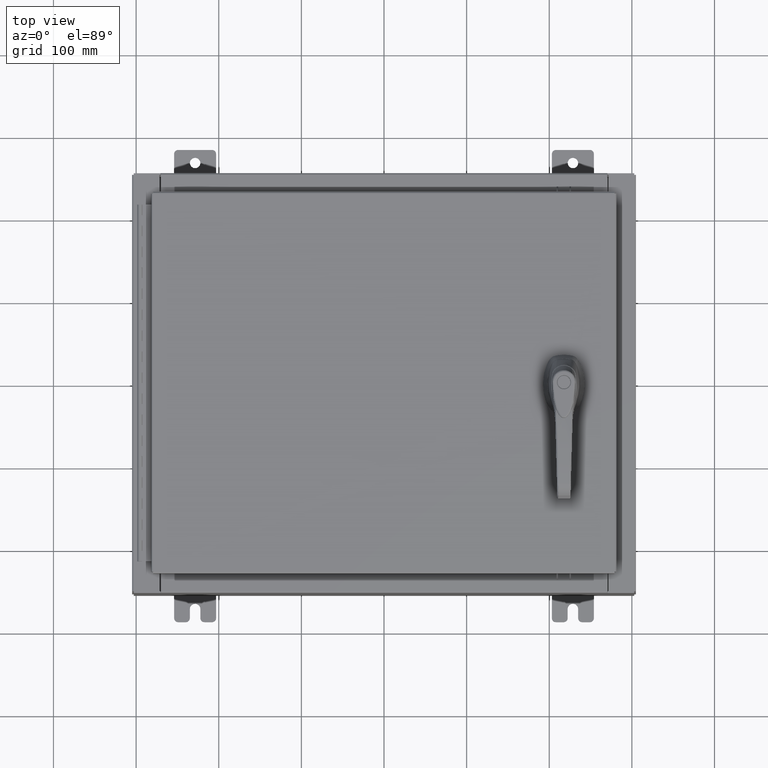
[diagram: clean part render]
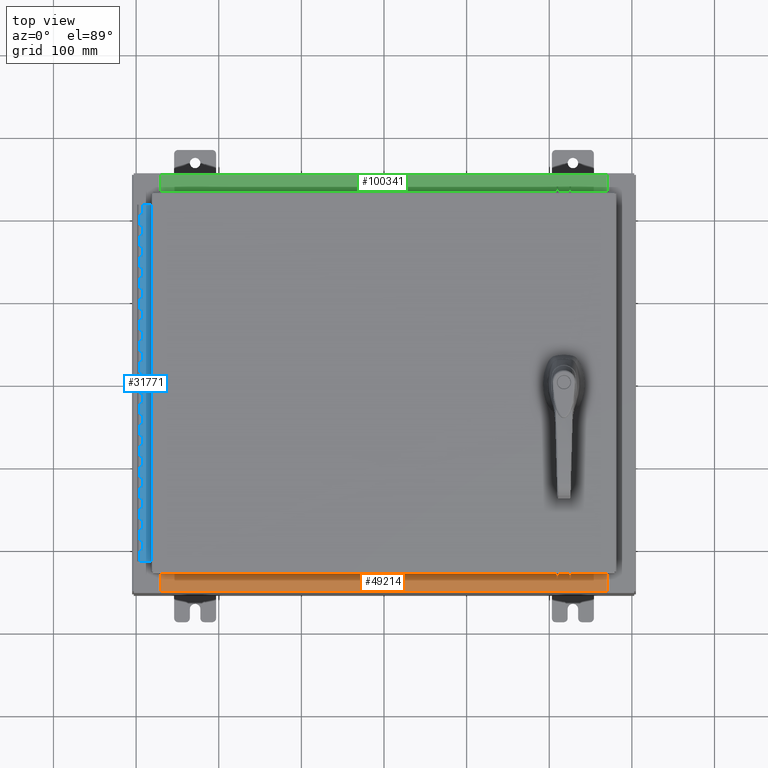
[diagram: same view with three faces highlighted in distinct colors, each labeled with its STEP entity id]
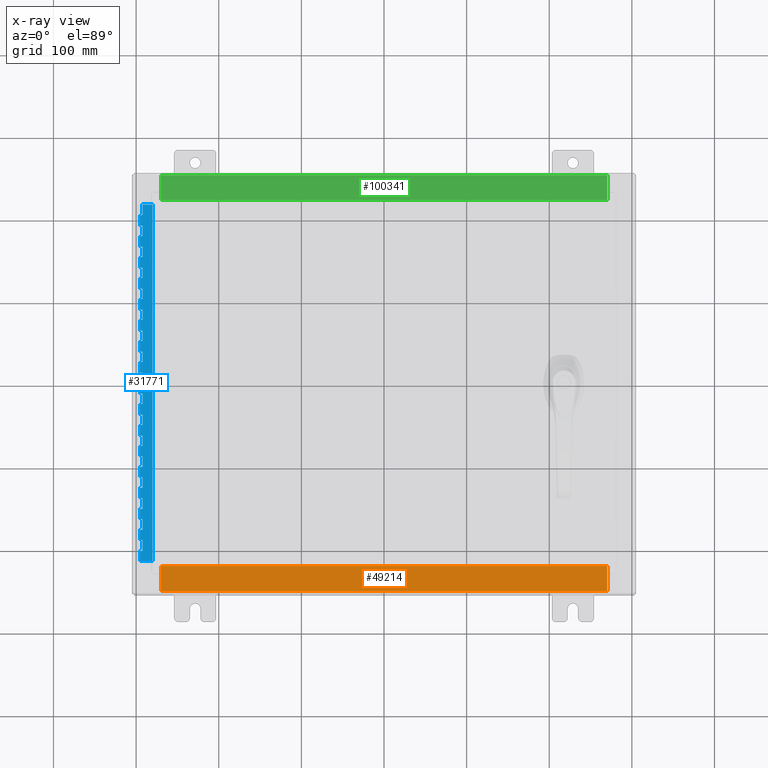
[diagram: x-ray of the same camera — body ghosted, the three highlighted faces saturated]
A machine part, top view with three faces highlighted in distinct colors.
The next image is the same camera in x-ray (body ghosted, the three faces saturated) — at least one of them is partly hidden behind the body in this view.
Their STEP definitions:

[orange] entity #49214 — the highlighted planar face has unit normal (-0, -0, 1).
#2926 = CARTESIAN_POINT ( 'NONE',  ( 10.63720000000000400, -0.08769999999999965300, 4.000000000000000000 ) ) ;
#3678 = CARTESIAN_POINT ( 'NONE',  ( -10.63720000000000200, -0.08770000000000000000, 4.000000000000000000 ) ) ;
#9365 = VERTEX_POINT ( 'NONE', #36536 ) ;
#10026 = EDGE_CURVE ( 'NONE', #102955, #9365, #25761, .T. ) ;
#11747 = VECTOR ( 'NONE', #107714, 39.37007874015748100 ) ;
#14982 = FACE_OUTER_BOUND ( 'NONE', #53616, .T. ) ;
#19145 = ORIENTED_EDGE ( 'NONE', *, *, #76750, .F. ) ;
#20736 = DIRECTION ( 'NONE',  ( -1.000000000000000000, 0.0000000000000000000, 0.0000000000000000000 ) ) ;
#25761 = LINE ( 'NONE', #80386, #48458 ) ;
#31931 = DIRECTION ( 'NONE',  ( -1.000000000000000000, 2.568202152506545800E-017, -9.159187855938968600E-032 ) ) ;
#32292 = VECTOR ( 'NONE', #31931, 39.37007874015748100 ) ;
#36536 = CARTESIAN_POINT ( 'NONE',  ( -10.63720000000000200, -1.287299999999999200, 4.000000000000004400 ) ) ;
#37056 = VECTOR ( 'NONE', #94693, 39.37007874015748100 ) ;
#38616 = DIRECTION ( 'NONE',  ( 0.0000000000000000000, 3.566381192773190000E-015, 1.000000000000000000 ) ) ;
#42518 = ORIENTED_EDGE ( 'NONE', *, *, #10026, .F. ) ;
#46809 = VERTEX_POINT ( 'NONE', #2926 ) ;
#48458 = VECTOR ( 'NONE', #20736, 39.37007874015748100 ) ;
#49214 = ADVANCED_FACE ( 'NONE', ( #14982 ), #81141, .T. ) ;
#49386 = EDGE_CURVE ( 'NONE', #46809, #68567, #97718, .T. ) ;
#53616 = EDGE_LOOP ( 'NONE', ( #87066, #42518, #19145, #109517 ) ) ;
#68567 = VERTEX_POINT ( 'NONE', #3678 ) ;
#72575 = CARTESIAN_POINT ( 'NONE',  ( 0.0000000000000000000, 1.425992975200418500E-014, 4.000000000000000000 ) ) ;
#76750 = EDGE_CURVE ( 'NONE', #46809, #102955, #105293, .T. ) ;
#80386 = CARTESIAN_POINT ( 'NONE',  ( 10.63720000000000400, -1.287299999999999900, 4.000000000000003600 ) ) ;
#81141 = PLANE ( 'NONE',  #92700 ) ;
#87066 = ORIENTED_EDGE ( 'NONE', *, *, #107253, .F. ) ;
#91617 = CARTESIAN_POINT ( 'NONE',  ( -2.252313287748606700E-018, -0.08770000000000000000, 4.000000000000000900 ) ) ;
#92700 = AXIS2_PLACEMENT_3D ( 'NONE', #72575, #38616, #98388 ) ;
#92769 = CARTESIAN_POINT ( 'NONE',  ( 10.63720000000000200, -1.287299999999999900, 4.000000000000004400 ) ) ;
#94324 = CARTESIAN_POINT ( 'NONE',  ( -10.63720000000000200, -0.07469999999999973900, 4.000000000000000000 ) ) ;
#94693 = DIRECTION ( 'NONE',  ( -0.0000000000000000000, 1.000000000000000000, -3.566381192773190000E-015 ) ) ;
#97718 = LINE ( 'NONE', #91617, #32292 ) ;
#98388 = DIRECTION ( 'NONE',  ( 0.0000000000000000000, -1.000000000000000000, 3.566381192773190000E-015 ) ) ;
#99047 = CARTESIAN_POINT ( 'NONE',  ( 10.63720000000000200, -1.300299999999999800, 4.000000000000004400 ) ) ;
#102955 = VERTEX_POINT ( 'NONE', #92769 ) ;
#105293 = LINE ( 'NONE', #99047, #11747 ) ;
#105297 = LINE ( 'NONE', #94324, #37056 ) ;
#107253 = EDGE_CURVE ( 'NONE', #9365, #68567, #105297, .T. ) ;
#107714 = DIRECTION ( 'NONE',  ( -0.0000000000000000000, -1.000000000000000000, 3.566381192773190000E-015 ) ) ;
#109517 = ORIENTED_EDGE ( 'NONE', *, *, #49386, .T. ) ;

[blue] entity #31771 — the highlighted planar face has unit normal (-0, -0, 1).
#47 = CARTESIAN_POINT ( 'NONE',  ( -0.6869999999999978300, 0.6754999999999996600, -4.500000000000000000 ) ) ;
#160 = CARTESIAN_POINT ( 'NONE',  ( -0.6869999999999973900, 0.8004999999999995500, -14.99999999999999800 ) ) ;
#166 = EDGE_CURVE ( 'NONE', #66786, #53249, #94823, .T. ) ;
#210 = EDGE_LOOP ( 'NONE', ( #28148, #21227, #45774, #89836, #55099, #100340, #6671, #25777, #104706, #49702, #51748, #77881, #69329, #95586, #48024, #107356, #3635, #78209, #102460, #104847, #3235, #86441, #109237, #80365, #55486, #34826, #59276, #17556, #63247, #79703, #69007, #70004, #37496, #805, #18520, #106635, #27858, #21245, #52656, #611, #77173, #21349, #98556, #86660, #47980, #106160, #30258, #24766, #56524, #71233, #87417, #68588, #11864, #36738, #79491, #19980, #49020, #80944, #15597, #80242, #26455, #42741, #3271, #69486, #12758, #40654, #24801, #6099, #38350, #12600 ) ) ;
#460 = DIRECTION ( 'NONE',  ( 0.0000000000000000000, 0.0000000000000000000, 1.000000000000000000 ) ) ;
#611 = ORIENTED_EDGE ( 'NONE', *, *, #92366, .F. ) ;
#805 = ORIENTED_EDGE ( 'NONE', *, *, #27399, .F. ) ;
#948 = VECTOR ( 'NONE', #106796, 39.37007874015748100 ) ;
#1266 = LINE ( 'NONE', #22145, #86622 ) ;
#1750 = VECTOR ( 'NONE', #14948, 39.37007874015748100 ) ;
#1844 = DIRECTION ( 'NONE',  ( 0.0000000000000000000, -0.0000000000000000000, -1.000000000000000000 ) ) ;
#1851 = VECTOR ( 'NONE', #51264, 39.37007874015748100 ) ;
#1892 = EDGE_CURVE ( 'NONE', #47592, #27334, #91960, .T. ) ;
#2068 = VECTOR ( 'NONE', #86081, 39.37007874015748100 ) ;
#2424 = VECTOR ( 'NONE', #9219, 39.37007874015748100 ) ;
#2437 = VERTEX_POINT ( 'NONE', #101552 ) ;
#2794 = EDGE_CURVE ( 'NONE', #108377, #70081, #94514, .T. ) ;
#2852 = CARTESIAN_POINT ( 'NONE',  ( -0.6869999999999978300, 0.6754999999999996600, -17.00000000000000000 ) ) ;
#3159 = VECTOR ( 'NONE', #67901, 39.37007874015748100 ) ;
#3235 = ORIENTED_EDGE ( 'NONE', *, *, #6371, .T. ) ;
#3271 = ORIENTED_EDGE ( 'NONE', *, *, #100487, .F. ) ;
#3494 = CARTESIAN_POINT ( 'NONE',  ( -0.6869999999999973900, 0.8004999999999995500, -12.99999999999999800 ) ) ;
#3635 = ORIENTED_EDGE ( 'NONE', *, *, #64058, .T. ) ;
#4064 = CARTESIAN_POINT ( 'NONE',  ( -0.6869999999999982800, 0.5504999999999997700, -3.500000000000000000 ) ) ;
#4186 = VERTEX_POINT ( 'NONE', #22409 ) ;
#4263 = VERTEX_POINT ( 'NONE', #99325 ) ;
#4587 = VECTOR ( 'NONE', #9686, 39.37007874015748100 ) ;
#4927 = DIRECTION ( 'NONE',  ( 3.369016658928398200E-015, 1.000000000000000000, 0.0000000000000000000 ) ) ;
#5301 = CARTESIAN_POINT ( 'NONE',  ( -0.6869999999999982800, 0.5504999999999997700, -14.49999999999999800 ) ) ;
#5536 = DIRECTION ( 'NONE',  ( -3.389037039080723100E-015, -1.000000000000000000, 0.0000000000000000000 ) ) ;
#5650 = CARTESIAN_POINT ( 'NONE',  ( -0.6869999999999973900, 0.8004999999999995500, -16.50000000000000000 ) ) ;
#5664 = VERTEX_POINT ( 'NONE', #98059 ) ;
#5669 = CARTESIAN_POINT ( 'NONE',  ( -0.6869999999999982800, 0.5504999999999997700, -6.499999999999999100 ) ) ;
#6099 = ORIENTED_EDGE ( 'NONE', *, *, #6832, .F. ) ;
#6231 = VERTEX_POINT ( 'NONE', #90782 ) ;
#6371 = EDGE_CURVE ( 'NONE', #9996, #27265, #22010, .T. ) ;
#6450 = VERTEX_POINT ( 'NONE', #49716 ) ;
#6508 = VECTOR ( 'NONE', #91940, 39.37007874015748100 ) ;
#6524 = DIRECTION ( 'NONE',  ( 3.389037039080723100E-015, 1.000000000000000000, -0.0000000000000000000 ) ) ;
#6545 = EDGE_CURVE ( 'NONE', #12798, #65476, #104913, .T. ) ;
#6671 = ORIENTED_EDGE ( 'NONE', *, *, #29966, .F. ) ;
#6832 = EDGE_CURVE ( 'NONE', #33840, #79031, #71380, .T. ) ;
#6902 = DIRECTION ( 'NONE',  ( 0.0000000000000000000, 0.0000000000000000000, 1.000000000000000000 ) ) ;
#6919 = FACE_OUTER_BOUND ( 'NONE', #210, .T. ) ;
#7591 = VERTEX_POINT ( 'NONE', #38199 ) ;
#8693 = VERTEX_POINT ( 'NONE', #56876 ) ;
#8892 = CARTESIAN_POINT ( 'NONE',  ( -0.6869999999999982800, 0.5504999999999997700, -1.499999999999999800 ) ) ;
#9219 = DIRECTION ( 'NONE',  ( -3.389037039080723100E-015, -1.000000000000000000, 0.0000000000000000000 ) ) ;
#9332 = CARTESIAN_POINT ( 'NONE',  ( -0.6869999999999998300, 0.07549999999999991400, -17.00000000000000000 ) ) ;
#9407 = CARTESIAN_POINT ( 'NONE',  ( -0.6869999999999978300, 0.6754999999999996600, -17.00000000000000000 ) ) ;
#9440 = CARTESIAN_POINT ( 'NONE',  ( -0.6869999999999973900, 0.8004999999999995500, -7.499999999999999100 ) ) ;
#9575 = DIRECTION ( 'NONE',  ( 0.0000000000000000000, 0.0000000000000000000, 1.000000000000000000 ) ) ;
#9686 = DIRECTION ( 'NONE',  ( 0.0000000000000000000, 0.0000000000000000000, 1.000000000000000000 ) ) ;
#9789 = CARTESIAN_POINT ( 'NONE',  ( -0.6869999999999973900, 0.8004999999999995500, -9.000000000000000000 ) ) ;
#9996 = VERTEX_POINT ( 'NONE', #28983 ) ;
#10642 = DIRECTION ( 'NONE',  ( 0.0000000000000000000, -0.0000000000000000000, -1.000000000000000000 ) ) ;
#10695 = CARTESIAN_POINT ( 'NONE',  ( -0.6869999999999978300, 0.6754999999999996600, -0.5000000000000000000 ) ) ;
#10941 = CARTESIAN_POINT ( 'NONE',  ( -0.6869999999999978300, 0.6754999999999996600, -17.00000000000000000 ) ) ;
#10952 = VECTOR ( 'NONE', #79586, 39.37007874015748100 ) ;
#11406 = VECTOR ( 'NONE', #23074, 39.37007874015748100 ) ;
#11598 = VECTOR ( 'NONE', #10642, 39.37007874015748100 ) ;
#11864 = ORIENTED_EDGE ( 'NONE', *, *, #69976, .T. ) ;
#12049 = DIRECTION ( 'NONE',  ( 3.389037039080723100E-015, 1.000000000000000000, -0.0000000000000000000 ) ) ;
#12271 = CARTESIAN_POINT ( 'NONE',  ( -0.6869999999999973900, 0.8004999999999995500, -12.49999999999999800 ) ) ;
#12285 = LINE ( 'NONE', #5669, #32270 ) ;
#12329 = LINE ( 'NONE', #96086, #105886 ) ;
#12508 = CARTESIAN_POINT ( 'NONE',  ( -0.6869999999999973900, 0.8004999999999995500, -10.00000000000000000 ) ) ;
#12600 = ORIENTED_EDGE ( 'NONE', *, *, #14618, .F. ) ;
#12735 = CARTESIAN_POINT ( 'NONE',  ( -0.6869999999999978300, 0.6754999999999996600, -2.000000000000000000 ) ) ;
#12758 = ORIENTED_EDGE ( 'NONE', *, *, #74078, .T. ) ;
#12798 = VERTEX_POINT ( 'NONE', #14641 ) ;
#13012 = VECTOR ( 'NONE', #106090, 39.37007874015748100 ) ;
#13204 = VERTEX_POINT ( 'NONE', #91060 ) ;
#13847 = LINE ( 'NONE', #30243, #76512 ) ;
#13936 = VECTOR ( 'NONE', #57755, 39.37007874015748100 ) ;
#14085 = VECTOR ( 'NONE', #23618, 39.37007874015748100 ) ;
#14203 = DIRECTION ( 'NONE',  ( -3.389037039080723100E-015, -1.000000000000000000, 0.0000000000000000000 ) ) ;
#14584 = CARTESIAN_POINT ( 'NONE',  ( -0.6869999999999978300, 0.6754999999999996600, -14.99999999999999800 ) ) ;
#14593 = CARTESIAN_POINT ( 'NONE',  ( -0.6869999999999982800, 0.5504999999999997700, -13.50000000000000000 ) ) ;
#14618 = EDGE_CURVE ( 'NONE', #23494, #25018, #13847, .T. ) ;
#14641 = CARTESIAN_POINT ( 'NONE',  ( -0.6869999999999978300, 0.6754999999999996600, -13.50000000000000000 ) ) ;
#14818 = CARTESIAN_POINT ( 'NONE',  ( -0.6869999999999978300, 0.6754999999999996600, -17.00000000000000000 ) ) ;
#14948 = DIRECTION ( 'NONE',  ( 0.0000000000000000000, -0.0000000000000000000, -1.000000000000000000 ) ) ;
#15169 = DIRECTION ( 'NONE',  ( 3.389037039080723100E-015, 1.000000000000000000, -0.0000000000000000000 ) ) ;
#15238 = EDGE_CURVE ( 'NONE', #47592, #66537, #67106, .T. ) ;
#15336 = VECTOR ( 'NONE', #94478, 39.37007874015748100 ) ;
#15484 = DIRECTION ( 'NONE',  ( 0.0000000000000000000, 0.0000000000000000000, 1.000000000000000000 ) ) ;
#15597 = ORIENTED_EDGE ( 'NONE', *, *, #24536, .F. ) ;
#15722 = VERTEX_POINT ( 'NONE', #57085 ) ;
#16150 = EDGE_CURVE ( 'NONE', #13204, #32594, #107193, .T. ) ;
#16256 = CARTESIAN_POINT ( 'NONE',  ( -0.6869999999999978300, 0.6754999999999996600, -7.499999999999999100 ) ) ;
#16966 = DIRECTION ( 'NONE',  ( 0.0000000000000000000, -0.0000000000000000000, -1.000000000000000000 ) ) ;
#17108 = LINE ( 'NONE', #12271, #62474 ) ;
#17121 = EDGE_CURVE ( 'NONE', #105178, #6231, #64196, .T. ) ;
#17377 = EDGE_CURVE ( 'NONE', #71331, #27682, #68175, .T. ) ;
#17556 = ORIENTED_EDGE ( 'NONE', *, *, #91099, .F. ) ;
#17654 = VECTOR ( 'NONE', #63993, 39.37007874015748100 ) ;
#18516 = LINE ( 'NONE', #51505, #86555 ) ;
#18520 = ORIENTED_EDGE ( 'NONE', *, *, #100731, .F. ) ;
#18750 = CARTESIAN_POINT ( 'NONE',  ( -0.6869999999999982800, 0.5504999999999997700, -3.500000000000000000 ) ) ;
#18813 = LINE ( 'NONE', #107136, #38776 ) ;
#19285 = VERTEX_POINT ( 'NONE', #63577 ) ;
#19440 = LINE ( 'NONE', #59318, #107644 ) ;
#19933 = CARTESIAN_POINT ( 'NONE',  ( -0.6869999999999973900, 0.8004999999999995500, -2.999999999999999600 ) ) ;
#19980 = ORIENTED_EDGE ( 'NONE', *, *, #58260, .F. ) ;
#20175 = VERTEX_POINT ( 'NONE', #47 ) ;
#20662 = CARTESIAN_POINT ( 'NONE',  ( -0.6869999999999982800, 0.5504999999999997700, -2.999999999999999600 ) ) ;
#20955 = CARTESIAN_POINT ( 'NONE',  ( -0.6869999999999978300, 0.6754999999999996600, -10.50000000000000000 ) ) ;
#21042 = VECTOR ( 'NONE', #73684, 39.37007874015748100 ) ;
#21172 = LINE ( 'NONE', #75096, #43876 ) ;
#21227 = ORIENTED_EDGE ( 'NONE', *, *, #98001, .T. ) ;
#21245 = ORIENTED_EDGE ( 'NONE', *, *, #84911, .F. ) ;
#21284 = CARTESIAN_POINT ( 'NONE',  ( -0.6869999999999978300, 0.6754999999999996600, -17.00000000000000000 ) ) ;
#21349 = ORIENTED_EDGE ( 'NONE', *, *, #77229, .F. ) ;
#21691 = VERTEX_POINT ( 'NONE', #61185 ) ;
#22010 = LINE ( 'NONE', #100548, #64683 ) ;
#22145 = CARTESIAN_POINT ( 'NONE',  ( -0.6869999999999973900, 0.8004999999999995500, -2.000000000000000000 ) ) ;
#22298 = CARTESIAN_POINT ( 'NONE',  ( -0.6869999999999978300, 0.6754999999999996600, -4.000000000000000000 ) ) ;
#22409 = CARTESIAN_POINT ( 'NONE',  ( -0.6869999999999982800, 0.5504999999999997700, -15.50000000000000000 ) ) ;
#22594 = CARTESIAN_POINT ( 'NONE',  ( -0.6869999999999973900, 0.8004999999999995500, -11.99999999999999800 ) ) ;
#22708 = CARTESIAN_POINT ( 'NONE',  ( -0.6869999999999973900, 0.8004999999999995500, -14.00000000000000000 ) ) ;
#22996 = DIRECTION ( 'NONE',  ( 0.0000000000000000000, 0.0000000000000000000, 1.000000000000000000 ) ) ;
#23074 = DIRECTION ( 'NONE',  ( 3.389037039080723100E-015, 1.000000000000000000, -0.0000000000000000000 ) ) ;
#23494 = VERTEX_POINT ( 'NONE', #58717 ) ;
#23512 = CARTESIAN_POINT ( 'NONE',  ( -0.6869999999999973900, 0.8004999999999995500, -6.000000000000000900 ) ) ;
#23618 = DIRECTION ( 'NONE',  ( -3.389037039080723100E-015, -1.000000000000000000, 0.0000000000000000000 ) ) ;
#24020 = DIRECTION ( 'NONE',  ( -3.389037039080723100E-015, -1.000000000000000000, 0.0000000000000000000 ) ) ;
#24089 = EDGE_CURVE ( 'NONE', #48915, #31179, #39412, .T. ) ;
#24398 = CARTESIAN_POINT ( 'NONE',  ( -0.6869999999999982800, 0.5504999999999997700, -7.499999999999999100 ) ) ;
#24536 = EDGE_CURVE ( 'NONE', #86071, #82583, #88780, .T. ) ;
#24736 = CARTESIAN_POINT ( 'NONE',  ( -0.6869999999999978300, 0.6754999999999996600, -17.00000000000000000 ) ) ;
#24766 = ORIENTED_EDGE ( 'NONE', *, *, #55823, .F. ) ;
#24801 = ORIENTED_EDGE ( 'NONE', *, *, #62375, .F. ) ;
#24824 = VECTOR ( 'NONE', #46777, 39.37007874015748100 ) ;
#24887 = LINE ( 'NONE', #85913, #90261 ) ;
#25018 = VERTEX_POINT ( 'NONE', #38219 ) ;
#25777 = ORIENTED_EDGE ( 'NONE', *, *, #50751, .F. ) ;
#25976 = VECTOR ( 'NONE', #56738, 39.37007874015748100 ) ;
#26104 = LINE ( 'NONE', #109003, #96920 ) ;
#26194 = DIRECTION ( 'NONE',  ( -3.389037039080723100E-015, -1.000000000000000000, 0.0000000000000000000 ) ) ;
#26420 = LINE ( 'NONE', #78688, #29125 ) ;
#26455 = ORIENTED_EDGE ( 'NONE', *, *, #94227, .T. ) ;
#26738 = VECTOR ( 'NONE', #37420, 39.37007874015748100 ) ;
#27265 = VERTEX_POINT ( 'NONE', #75655 ) ;
#27334 = VERTEX_POINT ( 'NONE', #110115 ) ;
#27399 = EDGE_CURVE ( 'NONE', #70955, #4263, #87436, .T. ) ;
#27442 = DIRECTION ( 'NONE',  ( 0.0000000000000000000, 0.0000000000000000000, 1.000000000000000000 ) ) ;
#27525 = LINE ( 'NONE', #12508, #24824 ) ;
#27682 = VERTEX_POINT ( 'NONE', #109640 ) ;
#27858 = ORIENTED_EDGE ( 'NONE', *, *, #89529, .T. ) ;
#27868 = LINE ( 'NONE', #2852, #50528 ) ;
#28148 = ORIENTED_EDGE ( 'NONE', *, *, #72154, .F. ) ;
#28944 = VERTEX_POINT ( 'NONE', #16256 ) ;
#28983 = CARTESIAN_POINT ( 'NONE',  ( -0.6869999999999978300, 0.6754999999999996600, -12.49999999999999800 ) ) ;
#29024 = VECTOR ( 'NONE', #12049, 39.37007874015748100 ) ;
#29027 = EDGE_CURVE ( 'NONE', #85376, #33328, #89872, .T. ) ;
#29125 = VECTOR ( 'NONE', #44767, 39.37007874015748100 ) ;
#29510 = EDGE_CURVE ( 'NONE', #57391, #95949, #96574, .T. ) ;
#29966 = EDGE_CURVE ( 'NONE', #4186, #55345, #67058, .T. ) ;
#29990 = EDGE_CURVE ( 'NONE', #54519, #61471, #49754, .T. ) ;
#30243 = CARTESIAN_POINT ( 'NONE',  ( -0.6870000000000022800, -0.6245000000000003900, 0.0000000000000000000 ) ) ;
#30258 = ORIENTED_EDGE ( 'NONE', *, *, #103661, .F. ) ;
#30401 = VECTOR ( 'NONE', #5536, 39.37007874015748100 ) ;
#30640 = EDGE_CURVE ( 'NONE', #102097, #15722, #40312, .T. ) ;
#31173 = EDGE_CURVE ( 'NONE', #82583, #31179, #53615, .T. ) ;
#31179 = VERTEX_POINT ( 'NONE', #71026 ) ;
#31253 = LINE ( 'NONE', #9407, #65884 ) ;
#31572 = VERTEX_POINT ( 'NONE', #67167 ) ;
#31665 = CARTESIAN_POINT ( 'NONE',  ( -0.6869999999999982800, 0.5504999999999997700, -11.50000000000000000 ) ) ;
#31771 = ADVANCED_FACE ( 'NONE', ( #6919 ), #79831, .T. ) ;
#32270 = VECTOR ( 'NONE', #39539, 39.37007874015748100 ) ;
#32583 = LINE ( 'NONE', #9332, #4587 ) ;
#32594 = VERTEX_POINT ( 'NONE', #81933 ) ;
#33101 = LINE ( 'NONE', #33750, #2424 ) ;
#33326 = DIRECTION ( 'NONE',  ( 0.0000000000000000000, 0.0000000000000000000, 1.000000000000000000 ) ) ;
#33328 = VERTEX_POINT ( 'NONE', #62728 ) ;
#33750 = CARTESIAN_POINT ( 'NONE',  ( -0.6869999999999973900, 0.8004999999999995500, -9.500000000000000000 ) ) ;
#33840 = VERTEX_POINT ( 'NONE', #10695 ) ;
#33947 = DIRECTION ( 'NONE',  ( 3.389037039080723100E-015, 1.000000000000000000, -0.0000000000000000000 ) ) ;
#34111 = EDGE_CURVE ( 'NONE', #37726, #101619, #1266, .T. ) ;
#34125 = VECTOR ( 'NONE', #41884, 39.37007874015748100 ) ;
#34709 = EDGE_CURVE ( 'NONE', #76290, #19285, #102688, .T. ) ;
#34768 = DIRECTION ( 'NONE',  ( -3.389037039080723100E-015, -1.000000000000000000, 0.0000000000000000000 ) ) ;
#34826 = ORIENTED_EDGE ( 'NONE', *, *, #38360, .F. ) ;
#35003 = VERTEX_POINT ( 'NONE', #73610 ) ;
#35443 = LINE ( 'NONE', #76578, #80820 ) ;
#36340 = DIRECTION ( 'NONE',  ( 0.0000000000000000000, -0.0000000000000000000, -1.000000000000000000 ) ) ;
#36608 = LINE ( 'NONE', #91736, #13936 ) ;
#36680 = VECTOR ( 'NONE', #34768, 39.37007874015748100 ) ;
#36738 = ORIENTED_EDGE ( 'NONE', *, *, #42419, .F. ) ;
#37220 = VECTOR ( 'NONE', #15169, 39.37007874015748100 ) ;
#37311 = DIRECTION ( 'NONE',  ( 1.000000000000000000, -3.369016658928398200E-015, 0.0000000000000000000 ) ) ;
#37344 = EDGE_CURVE ( 'NONE', #90210, #70644, #24887, .T. ) ;
#37420 = DIRECTION ( 'NONE',  ( -3.389037039080723100E-015, -1.000000000000000000, 0.0000000000000000000 ) ) ;
#37496 = ORIENTED_EDGE ( 'NONE', *, *, #80273, .T. ) ;
#37580 = DIRECTION ( 'NONE',  ( -3.389037039080723100E-015, -1.000000000000000000, 0.0000000000000000000 ) ) ;
#37726 = VERTEX_POINT ( 'NONE', #99100 ) ;
#37992 = EDGE_CURVE ( 'NONE', #65476, #75367, #35443, .T. ) ;
#38199 = CARTESIAN_POINT ( 'NONE',  ( -0.6869999999999982800, 0.5504999999999997700, -17.00000000000000000 ) ) ;
#38219 = CARTESIAN_POINT ( 'NONE',  ( -0.6869999999999978300, 0.6754999999999996600, 0.0000000000000000000 ) ) ;
#38350 = ORIENTED_EDGE ( 'NONE', *, *, #70391, .T. ) ;
#38360 = EDGE_CURVE ( 'NONE', #32594, #101152, #19440, .T. ) ;
#38776 = VECTOR ( 'NONE', #81589, 39.37007874015748100 ) ;
#39412 = LINE ( 'NONE', #102682, #104974 ) ;
#39457 = LINE ( 'NONE', #101680, #34125 ) ;
#39539 = DIRECTION ( 'NONE',  ( 0.0000000000000000000, -0.0000000000000000000, -1.000000000000000000 ) ) ;
#39563 = CARTESIAN_POINT ( 'NONE',  ( -0.6869999999999973900, 0.8004999999999995500, -0.5000000000000000000 ) ) ;
#39638 = CARTESIAN_POINT ( 'NONE',  ( -0.6869999999999982800, 0.5504999999999997700, -4.500000000000000000 ) ) ;
#40312 = LINE ( 'NONE', #4064, #17654 ) ;
#40654 = ORIENTED_EDGE ( 'NONE', *, *, #29027, .F. ) ;
#40704 = VECTOR ( 'NONE', #108132, 39.37007874015748100 ) ;
#40900 = CARTESIAN_POINT ( 'NONE',  ( -0.6869999999999982800, 0.5504999999999997700, -7.499999999999999100 ) ) ;
#40978 = VECTOR ( 'NONE', #64866, 39.37007874015748100 ) ;
#41212 = CARTESIAN_POINT ( 'NONE',  ( -0.6869999999999973900, 0.8004999999999995500, -16.00000000000000000 ) ) ;
#41757 = DIRECTION ( 'NONE',  ( 3.389037039080723100E-015, 1.000000000000000000, -0.0000000000000000000 ) ) ;
#41800 = EDGE_CURVE ( 'NONE', #9996, #71331, #17108, .T. ) ;
#41884 = DIRECTION ( 'NONE',  ( -3.389037039080723100E-015, -1.000000000000000000, 0.0000000000000000000 ) ) ;
#41902 = EDGE_CURVE ( 'NONE', #48270, #35003, #87851, .T. ) ;
#42150 = CARTESIAN_POINT ( 'NONE',  ( -0.6869999999999982800, 0.5504999999999997700, -14.49999999999999800 ) ) ;
#42300 = EDGE_CURVE ( 'NONE', #103213, #27265, #86437, .T. ) ;
#42327 = CARTESIAN_POINT ( 'NONE',  ( -0.6869999999999978300, 0.6754999999999996600, -6.000000000000000900 ) ) ;
#42419 = EDGE_CURVE ( 'NONE', #15722, #65253, #66410, .T. ) ;
#42599 = VECTOR ( 'NONE', #9575, 39.37007874015748100 ) ;
#42741 = ORIENTED_EDGE ( 'NONE', *, *, #34111, .F. ) ;
#42811 = VECTOR ( 'NONE', #56146, 39.37007874015748100 ) ;
#42842 = VECTOR ( 'NONE', #94877, 39.37007874015748100 ) ;
#42897 = EDGE_CURVE ( 'NONE', #66786, #101152, #18516, .T. ) ;
#42929 = CARTESIAN_POINT ( 'NONE',  ( -0.6869999999999982800, 0.5504999999999997700, -5.500000000000000000 ) ) ;
#43876 = VECTOR ( 'NONE', #15484, 39.37007874015748100 ) ;
#44393 = VECTOR ( 'NONE', #83133, 39.37007874015748100 ) ;
#44659 = DIRECTION ( 'NONE',  ( -3.389037039080723100E-015, -1.000000000000000000, 0.0000000000000000000 ) ) ;
#44767 = DIRECTION ( 'NONE',  ( 0.0000000000000000000, -0.0000000000000000000, -1.000000000000000000 ) ) ;
#45389 = EDGE_CURVE ( 'NONE', #53249, #103213, #99720, .T. ) ;
#45774 = ORIENTED_EDGE ( 'NONE', *, *, #88480, .F. ) ;
#46285 = CARTESIAN_POINT ( 'NONE',  ( -0.6869999999999973900, 0.8004999999999995500, -7.000000000000000000 ) ) ;
#46777 = DIRECTION ( 'NONE',  ( 3.389037039080723100E-015, 1.000000000000000000, -0.0000000000000000000 ) ) ;
#46956 = CARTESIAN_POINT ( 'NONE',  ( -0.6869999999999978300, 0.6754999999999996600, -17.00000000000000000 ) ) ;
#47216 = CARTESIAN_POINT ( 'NONE',  ( -0.6869999999999982800, 0.5504999999999997700, -9.000000000000000000 ) ) ;
#47592 = VERTEX_POINT ( 'NONE', #82469 ) ;
#47622 = CARTESIAN_POINT ( 'NONE',  ( -0.6869999999999973900, 0.8004999999999995500, -5.500000000000000000 ) ) ;
#47980 = ORIENTED_EDGE ( 'NONE', *, *, #108548, .T. ) ;
#48024 = ORIENTED_EDGE ( 'NONE', *, *, #37992, .F. ) ;
#48168 = VECTOR ( 'NONE', #106336, 39.37007874015748100 ) ;
#48224 = CARTESIAN_POINT ( 'NONE',  ( -0.6869999999999978300, 0.6754999999999996600, -17.00000000000000000 ) ) ;
#48270 = VERTEX_POINT ( 'NONE', #24398 ) ;
#48292 = CARTESIAN_POINT ( 'NONE',  ( -0.6869999999999982800, 0.5504999999999997700, -2.500000000000000000 ) ) ;
#48579 = VERTEX_POINT ( 'NONE', #67035 ) ;
#48915 = VERTEX_POINT ( 'NONE', #53238 ) ;
#48967 = CARTESIAN_POINT ( 'NONE',  ( -0.6869999999999982800, 0.5504999999999997700, -9.500000000000000000 ) ) ;
#49020 = ORIENTED_EDGE ( 'NONE', *, *, #24089, .T. ) ;
#49702 = ORIENTED_EDGE ( 'NONE', *, *, #76044, .F. ) ;
#49716 = CARTESIAN_POINT ( 'NONE',  ( -0.6869999999999978300, 0.6754999999999996600, -5.000000000000000000 ) ) ;
#49754 = LINE ( 'NONE', #23512, #44393 ) ;
#50344 = DIRECTION ( 'NONE',  ( 0.0000000000000000000, -0.0000000000000000000, -1.000000000000000000 ) ) ;
#50528 = VECTOR ( 'NONE', #27442, 39.37007874015748100 ) ;
#50751 = EDGE_CURVE ( 'NONE', #90210, #4186, #18813, .T. ) ;
#50864 = LINE ( 'NONE', #105957, #48168 ) ;
#51041 = VECTOR ( 'NONE', #73958, 39.37007874015748100 ) ;
#51264 = DIRECTION ( 'NONE',  ( 3.389037039080723100E-015, 1.000000000000000000, -0.0000000000000000000 ) ) ;
#51492 = VERTEX_POINT ( 'NONE', #8892 ) ;
#51505 = CARTESIAN_POINT ( 'NONE',  ( -0.6869999999999978300, 0.6754999999999996600, -17.00000000000000000 ) ) ;
#51543 = CARTESIAN_POINT ( 'NONE',  ( -0.6869999999999973900, 0.8004999999999995500, -13.50000000000000000 ) ) ;
#51706 = CARTESIAN_POINT ( 'NONE',  ( -0.6869999999999982800, 0.5504999999999997700, -14.00000000000000000 ) ) ;
#51748 = ORIENTED_EDGE ( 'NONE', *, *, #89478, .F. ) ;
#52164 = CARTESIAN_POINT ( 'NONE',  ( -0.6869999999999982800, 0.5504999999999997700, -9.500000000000000000 ) ) ;
#52656 = ORIENTED_EDGE ( 'NONE', *, *, #41902, .F. ) ;
#52713 = VERTEX_POINT ( 'NONE', #42929 ) ;
#53032 = VERTEX_POINT ( 'NONE', #54100 ) ;
#53127 = AXIS2_PLACEMENT_3D ( 'NONE', #88423, #37311, #97051 ) ;
#53237 = CARTESIAN_POINT ( 'NONE',  ( -0.6869999999999973900, 0.8004999999999995500, -2.500000000000000000 ) ) ;
#53238 = CARTESIAN_POINT ( 'NONE',  ( -0.6869999999999978300, 0.6754999999999996600, -3.500000000000000000 ) ) ;
#53249 = VERTEX_POINT ( 'NONE', #31665 ) ;
#53615 = LINE ( 'NONE', #19933, #10952 ) ;
#53670 = VECTOR ( 'NONE', #95979, 39.37007874015748100 ) ;
#53745 = VECTOR ( 'NONE', #44659, 39.37007874015748100 ) ;
#54076 = LINE ( 'NONE', #22708, #11406 ) ;
#54100 = CARTESIAN_POINT ( 'NONE',  ( -0.6869999999999978300, 0.6754999999999996600, -10.00000000000000000 ) ) ;
#54519 = VERTEX_POINT ( 'NONE', #85500 ) ;
#54567 = VECTOR ( 'NONE', #22996, 39.37007874015748100 ) ;
#55099 = ORIENTED_EDGE ( 'NONE', *, *, #83427, .T. ) ;
#55345 = VERTEX_POINT ( 'NONE', #60364 ) ;
#55416 = EDGE_CURVE ( 'NONE', #20175, #5664, #74479, .T. ) ;
#55486 = ORIENTED_EDGE ( 'NONE', *, *, #42897, .T. ) ;
#55823 = EDGE_CURVE ( 'NONE', #31572, #52713, #75746, .T. ) ;
#56146 = DIRECTION ( 'NONE',  ( 0.0000000000000000000, -0.0000000000000000000, -1.000000000000000000 ) ) ;
#56524 = ORIENTED_EDGE ( 'NONE', *, *, #87596, .T. ) ;
#56707 = DIRECTION ( 'NONE',  ( 0.0000000000000000000, 0.0000000000000000000, 1.000000000000000000 ) ) ;
#56738 = DIRECTION ( 'NONE',  ( -3.389037039080723100E-015, -1.000000000000000000, 0.0000000000000000000 ) ) ;
#56876 = CARTESIAN_POINT ( 'NONE',  ( -0.6869999999999998300, 0.07549999999999991400, -17.00000000000000000 ) ) ;
#57085 = CARTESIAN_POINT ( 'NONE',  ( -0.6869999999999982800, 0.5504999999999997700, -4.000000000000000000 ) ) ;
#57391 = VERTEX_POINT ( 'NONE', #91299 ) ;
#57752 = DIRECTION ( 'NONE',  ( -3.389037039080723100E-015, -1.000000000000000000, 0.0000000000000000000 ) ) ;
#57755 = DIRECTION ( 'NONE',  ( 0.0000000000000000000, 0.0000000000000000000, 1.000000000000000000 ) ) ;
#58260 = EDGE_CURVE ( 'NONE', #48915, #102097, #26104, .T. ) ;
#58339 = VECTOR ( 'NONE', #56707, 39.37007874015748100 ) ;
#58370 = LINE ( 'NONE', #46285, #13012 ) ;
#58717 = CARTESIAN_POINT ( 'NONE',  ( -0.6869999999999998300, 0.07549999999999991400, 0.0000000000000000000 ) ) ;
#58895 = VECTOR ( 'NONE', #24020, 39.37007874015748100 ) ;
#59074 = LINE ( 'NONE', #39638, #51041 ) ;
#59276 = ORIENTED_EDGE ( 'NONE', *, *, #16150, .F. ) ;
#59318 = CARTESIAN_POINT ( 'NONE',  ( -0.6869999999999973900, 0.8004999999999995500, -11.00000000000000000 ) ) ;
#59445 = LINE ( 'NONE', #83249, #14085 ) ;
#59958 = CARTESIAN_POINT ( 'NONE',  ( -0.6869999999999982800, 0.5504999999999997700, -0.5000000000000000000 ) ) ;
#60071 = VECTOR ( 'NONE', #105390, 39.37007874015748100 ) ;
#60270 = CARTESIAN_POINT ( 'NONE',  ( -0.6869999999999982800, 0.5504999999999997700, -5.000000000000000000 ) ) ;
#60278 = EDGE_CURVE ( 'NONE', #5664, #75373, #59074, .T. ) ;
#60364 = CARTESIAN_POINT ( 'NONE',  ( -0.6869999999999982800, 0.5504999999999997700, -16.00000000000000000 ) ) ;
#60795 = VERTEX_POINT ( 'NONE', #87190 ) ;
#61103 = CARTESIAN_POINT ( 'NONE',  ( -0.6869999999999973900, 0.8004999999999995500, -4.500000000000000000 ) ) ;
#61185 = CARTESIAN_POINT ( 'NONE',  ( -0.6869999999999982800, 0.5504999999999997700, -7.000000000000000000 ) ) ;
#61471 = VERTEX_POINT ( 'NONE', #42327 ) ;
#61682 = CARTESIAN_POINT ( 'NONE',  ( -0.6869999999999982800, 0.5504999999999997700, -11.50000000000000000 ) ) ;
#61971 = CARTESIAN_POINT ( 'NONE',  ( -0.6869999999999978300, 0.6754999999999996600, -16.50000000000000000 ) ) ;
#62106 = LINE ( 'NONE', #21284, #84784 ) ;
#62375 = EDGE_CURVE ( 'NONE', #79031, #85376, #90881, .T. ) ;
#62474 = VECTOR ( 'NONE', #37580, 39.37007874015748100 ) ;
#62728 = CARTESIAN_POINT ( 'NONE',  ( -0.6869999999999978300, 0.6754999999999996600, -1.000000000000000000 ) ) ;
#62907 = CARTESIAN_POINT ( 'NONE',  ( -0.6869999999999978300, 0.6754999999999996600, -7.000000000000000000 ) ) ;
#63048 = VERTEX_POINT ( 'NONE', #20955 ) ;
#63247 = ORIENTED_EDGE ( 'NONE', *, *, #93167, .T. ) ;
#63577 = CARTESIAN_POINT ( 'NONE',  ( -0.6869999999999982800, 0.5504999999999997700, -16.50000000000000000 ) ) ;
#63993 = DIRECTION ( 'NONE',  ( 0.0000000000000000000, -0.0000000000000000000, -1.000000000000000000 ) ) ;
#64058 = EDGE_CURVE ( 'NONE', #12798, #78639, #65242, .T. ) ;
#64196 = LINE ( 'NONE', #83670, #58895 ) ;
#64278 = VECTOR ( 'NONE', #72856, 39.37007874015748100 ) ;
#64683 = VECTOR ( 'NONE', #6902, 39.37007874015748100 ) ;
#64866 = DIRECTION ( 'NONE',  ( 0.0000000000000000000, -0.0000000000000000000, -1.000000000000000000 ) ) ;
#65242 = LINE ( 'NONE', #69202, #42599 ) ;
#65253 = VERTEX_POINT ( 'NONE', #22298 ) ;
#65476 = VERTEX_POINT ( 'NONE', #14593 ) ;
#65835 = DIRECTION ( 'NONE',  ( 0.0000000000000000000, 0.0000000000000000000, 1.000000000000000000 ) ) ;
#65884 = VECTOR ( 'NONE', #69018, 39.37007874015748100 ) ;
#65974 = CARTESIAN_POINT ( 'NONE',  ( -0.6869999999999982800, 0.5504999999999997700, -15.50000000000000000 ) ) ;
#66410 = LINE ( 'NONE', #91638, #37220 ) ;
#66517 = CARTESIAN_POINT ( 'NONE',  ( -0.6869999999999982800, 0.5504999999999997700, -12.49999999999999800 ) ) ;
#66537 = VERTEX_POINT ( 'NONE', #42150 ) ;
#66786 = VERTEX_POINT ( 'NONE', #109773 ) ;
#67035 = CARTESIAN_POINT ( 'NONE',  ( -0.6869999999999978300, 0.6754999999999996600, -9.500000000000000000 ) ) ;
#67058 = LINE ( 'NONE', #65974, #1750 ) ;
#67106 = LINE ( 'NONE', #85853, #69774 ) ;
#67167 = CARTESIAN_POINT ( 'NONE',  ( -0.6869999999999978300, 0.6754999999999996600, -5.500000000000000000 ) ) ;
#67901 = DIRECTION ( 'NONE',  ( -3.389037039080723100E-015, -1.000000000000000000, 0.0000000000000000000 ) ) ;
#68175 = LINE ( 'NONE', #94507, #42842 ) ;
#68588 = ORIENTED_EDGE ( 'NONE', *, *, #55416, .F. ) ;
#68754 = DIRECTION ( 'NONE',  ( 0.0000000000000000000, 0.0000000000000000000, 1.000000000000000000 ) ) ;
#69007 = ORIENTED_EDGE ( 'NONE', *, *, #2794, .F. ) ;
#69018 = DIRECTION ( 'NONE',  ( 0.0000000000000000000, 0.0000000000000000000, 1.000000000000000000 ) ) ;
#69053 = CARTESIAN_POINT ( 'NONE',  ( -0.6869999999999982800, 0.5504999999999997700, -10.00000000000000000 ) ) ;
#69202 = CARTESIAN_POINT ( 'NONE',  ( -0.6869999999999978300, 0.6754999999999996600, -17.00000000000000000 ) ) ;
#69329 = ORIENTED_EDGE ( 'NONE', *, *, #1892, .T. ) ;
#69478 = VECTOR ( 'NONE', #6524, 39.37007874015748100 ) ;
#69486 = ORIENTED_EDGE ( 'NONE', *, *, #110007, .F. ) ;
#69676 = DIRECTION ( 'NONE',  ( -3.389037039080723100E-015, -1.000000000000000000, 0.0000000000000000000 ) ) ;
#69774 = VECTOR ( 'NONE', #26194, 39.37007874015748100 ) ;
#69976 = EDGE_CURVE ( 'NONE', #20175, #65253, #103662, .T. ) ;
#70004 = ORIENTED_EDGE ( 'NONE', *, *, #75120, .F. ) ;
#70046 = CARTESIAN_POINT ( 'NONE',  ( -0.6869999999999982800, 0.5504999999999997700, -10.50000000000000000 ) ) ;
#70081 = VERTEX_POINT ( 'NONE', #69053 ) ;
#70391 = EDGE_CURVE ( 'NONE', #33840, #25018, #62106, .T. ) ;
#70644 = VERTEX_POINT ( 'NONE', #14584 ) ;
#70955 = VERTEX_POINT ( 'NONE', #47216 ) ;
#71011 = LINE ( 'NONE', #10941, #53670 ) ;
#71026 = CARTESIAN_POINT ( 'NONE',  ( -0.6869999999999978300, 0.6754999999999996600, -2.999999999999999600 ) ) ;
#71233 = ORIENTED_EDGE ( 'NONE', *, *, #89714, .F. ) ;
#71331 = VERTEX_POINT ( 'NONE', #66517 ) ;
#71380 = LINE ( 'NONE', #39563, #25976 ) ;
#71806 = VECTOR ( 'NONE', #50344, 39.37007874015748100 ) ;
#71824 = VECTOR ( 'NONE', #69676, 39.37007874015748100 ) ;
#72154 = EDGE_CURVE ( 'NONE', #8693, #23494, #32583, .T. ) ;
#72187 = LINE ( 'NONE', #83258, #69478 ) ;
#72856 = DIRECTION ( 'NONE',  ( 0.0000000000000000000, -0.0000000000000000000, -1.000000000000000000 ) ) ;
#72964 = VECTOR ( 'NONE', #41757, 39.37007874015748100 ) ;
#73610 = CARTESIAN_POINT ( 'NONE',  ( -0.6869999999999982800, 0.5504999999999997700, -8.000000000000000000 ) ) ;
#73684 = DIRECTION ( 'NONE',  ( 3.389037039080723100E-015, 1.000000000000000000, -0.0000000000000000000 ) ) ;
#73958 = DIRECTION ( 'NONE',  ( 0.0000000000000000000, -0.0000000000000000000, -1.000000000000000000 ) ) ;
#74078 = EDGE_CURVE ( 'NONE', #102295, #33328, #27868, .T. ) ;
#74479 = LINE ( 'NONE', #61103, #71824 ) ;
#75049 = CARTESIAN_POINT ( 'NONE',  ( -0.6869999999999978300, 0.6754999999999996600, -15.50000000000000000 ) ) ;
#75096 = CARTESIAN_POINT ( 'NONE',  ( -0.6869999999999978300, 0.6754999999999996600, -17.00000000000000000 ) ) ;
#75120 = EDGE_CURVE ( 'NONE', #48579, #108377, #33101, .T. ) ;
#75239 = VERTEX_POINT ( 'NONE', #96094 ) ;
#75367 = VERTEX_POINT ( 'NONE', #51706 ) ;
#75373 = VERTEX_POINT ( 'NONE', #60270 ) ;
#75655 = CARTESIAN_POINT ( 'NONE',  ( -0.6869999999999978300, 0.6754999999999996600, -11.99999999999999800 ) ) ;
#75695 = CARTESIAN_POINT ( 'NONE',  ( -0.6869999999999973900, 0.8004999999999995500, -5.000000000000000000 ) ) ;
#75746 = LINE ( 'NONE', #47622, #30401 ) ;
#76044 = EDGE_CURVE ( 'NONE', #60795, #70644, #91898, .T. ) ;
#76290 = VERTEX_POINT ( 'NONE', #61971 ) ;
#76512 = VECTOR ( 'NONE', #4927, 39.37007874015748100 ) ;
#76578 = CARTESIAN_POINT ( 'NONE',  ( -0.6869999999999982800, 0.5504999999999997700, -13.50000000000000000 ) ) ;
#77173 = ORIENTED_EDGE ( 'NONE', *, *, #85683, .T. ) ;
#77229 = EDGE_CURVE ( 'NONE', #21691, #79305, #58370, .T. ) ;
#77297 = LINE ( 'NONE', #41212, #100097 ) ;
#77881 = ORIENTED_EDGE ( 'NONE', *, *, #15238, .F. ) ;
#78209 = ORIENTED_EDGE ( 'NONE', *, *, #89307, .F. ) ;
#78639 = VERTEX_POINT ( 'NONE', #81980 ) ;
#78688 = CARTESIAN_POINT ( 'NONE',  ( -0.6869999999999982800, 0.5504999999999997700, -16.50000000000000000 ) ) ;
#79031 = VERTEX_POINT ( 'NONE', #59958 ) ;
#79145 = CARTESIAN_POINT ( 'NONE',  ( -0.6869999999999982800, 0.5504999999999997700, -5.500000000000000000 ) ) ;
#79305 = VERTEX_POINT ( 'NONE', #62907 ) ;
#79491 = ORIENTED_EDGE ( 'NONE', *, *, #30640, .F. ) ;
#79586 = DIRECTION ( 'NONE',  ( 3.389037039080723100E-015, 1.000000000000000000, -0.0000000000000000000 ) ) ;
#79703 = ORIENTED_EDGE ( 'NONE', *, *, #90849, .F. ) ;
#79831 = PLANE ( 'NONE',  #53127 ) ;
#79870 = VECTOR ( 'NONE', #14203, 39.37007874015748100 ) ;
#80086 = LINE ( 'NONE', #105751, #60071 ) ;
#80242 = ORIENTED_EDGE ( 'NONE', *, *, #96163, .F. ) ;
#80273 = EDGE_CURVE ( 'NONE', #48579, #4263, #84669, .T. ) ;
#80365 = ORIENTED_EDGE ( 'NONE', *, *, #166, .F. ) ;
#80820 = VECTOR ( 'NONE', #16966, 39.37007874015748100 ) ;
#80932 = DIRECTION ( 'NONE',  ( 0.0000000000000000000, 0.0000000000000000000, 1.000000000000000000 ) ) ;
#80944 = ORIENTED_EDGE ( 'NONE', *, *, #31173, .F. ) ;
#80977 = LINE ( 'NONE', #82036, #58339 ) ;
#81035 = CARTESIAN_POINT ( 'NONE',  ( -0.6869999999999982800, 0.5504999999999997700, -11.99999999999999800 ) ) ;
#81474 = CARTESIAN_POINT ( 'NONE',  ( -0.6869999999999982800, 0.5504999999999997700, -0.5000000000000000000 ) ) ;
#81589 = DIRECTION ( 'NONE',  ( -3.389037039080723100E-015, -1.000000000000000000, 0.0000000000000000000 ) ) ;
#81780 = DIRECTION ( 'NONE',  ( 3.389037039080723100E-015, 1.000000000000000000, -0.0000000000000000000 ) ) ;
#81933 = CARTESIAN_POINT ( 'NONE',  ( -0.6869999999999982800, 0.5504999999999997700, -11.00000000000000000 ) ) ;
#81980 = CARTESIAN_POINT ( 'NONE',  ( -0.6869999999999978300, 0.6754999999999996600, -12.99999999999999800 ) ) ;
#82036 = CARTESIAN_POINT ( 'NONE',  ( -0.6869999999999978300, 0.6754999999999996600, -17.00000000000000000 ) ) ;
#82469 = CARTESIAN_POINT ( 'NONE',  ( -0.6869999999999978300, 0.6754999999999996600, -14.49999999999999800 ) ) ;
#82583 = VERTEX_POINT ( 'NONE', #20662 ) ;
#83133 = DIRECTION ( 'NONE',  ( 3.389037039080723100E-015, 1.000000000000000000, -0.0000000000000000000 ) ) ;
#83249 = CARTESIAN_POINT ( 'NONE',  ( -0.6869999999999973900, 0.8004999999999995500, -1.499999999999999800 ) ) ;
#83258 = CARTESIAN_POINT ( 'NONE',  ( -0.6869999999999973900, 0.8004999999999995500, -8.000000000000000000 ) ) ;
#83342 = LINE ( 'NONE', #9440, #15336 ) ;
#83427 = EDGE_CURVE ( 'NONE', #76290, #2437, #71011, .T. ) ;
#83670 = CARTESIAN_POINT ( 'NONE',  ( -0.6869999999999973900, 0.8004999999999995500, -8.500000000000000000 ) ) ;
#83737 = EDGE_CURVE ( 'NONE', #95949, #21691, #12285, .T. ) ;
#84335 = VECTOR ( 'NONE', #1844, 39.37007874015748100 ) ;
#84572 = CARTESIAN_POINT ( 'NONE',  ( -0.6869999999999982800, 0.5504999999999997700, -6.499999999999999100 ) ) ;
#84669 = LINE ( 'NONE', #14818, #107514 ) ;
#84784 = VECTOR ( 'NONE', #80932, 39.37007874015748100 ) ;
#84911 = EDGE_CURVE ( 'NONE', #35003, #98154, #72187, .T. ) ;
#85097 = CARTESIAN_POINT ( 'NONE',  ( -0.6869999999999978300, 0.6754999999999996600, -11.00000000000000000 ) ) ;
#85376 = VERTEX_POINT ( 'NONE', #85487 ) ;
#85487 = CARTESIAN_POINT ( 'NONE',  ( -0.6869999999999982800, 0.5504999999999997700, -1.000000000000000000 ) ) ;
#85500 = CARTESIAN_POINT ( 'NONE',  ( -0.6869999999999982800, 0.5504999999999997700, -6.000000000000000900 ) ) ;
#85683 = EDGE_CURVE ( 'NONE', #28944, #79305, #80086, .T. ) ;
#85853 = CARTESIAN_POINT ( 'NONE',  ( -0.6869999999999973900, 0.8004999999999995500, -14.49999999999999800 ) ) ;
#85913 = CARTESIAN_POINT ( 'NONE',  ( -0.6869999999999978300, 0.6754999999999996600, -17.00000000000000000 ) ) ;
#86071 = VERTEX_POINT ( 'NONE', #87601 ) ;
#86081 = DIRECTION ( 'NONE',  ( 3.389037039080723100E-015, 1.000000000000000000, -0.0000000000000000000 ) ) ;
#86180 = VECTOR ( 'NONE', #33326, 39.37007874015748100 ) ;
#86359 = LINE ( 'NONE', #5301, #40978 ) ;
#86437 = LINE ( 'NONE', #22594, #21042 ) ;
#86441 = ORIENTED_EDGE ( 'NONE', *, *, #42300, .F. ) ;
#86555 = VECTOR ( 'NONE', #460, 39.37007874015748100 ) ;
#86622 = VECTOR ( 'NONE', #81780, 39.37007874015748100 ) ;
#86660 = ORIENTED_EDGE ( 'NONE', *, *, #29510, .F. ) ;
#87019 = LINE ( 'NONE', #106953, #64278 ) ;
#87190 = CARTESIAN_POINT ( 'NONE',  ( -0.6869999999999982800, 0.5504999999999997700, -14.99999999999999800 ) ) ;
#87417 = ORIENTED_EDGE ( 'NONE', *, *, #60278, .F. ) ;
#87436 = LINE ( 'NONE', #9789, #2068 ) ;
#87596 = EDGE_CURVE ( 'NONE', #31572, #6450, #21172, .T. ) ;
#87601 = CARTESIAN_POINT ( 'NONE',  ( -0.6869999999999982800, 0.5504999999999997700, -2.500000000000000000 ) ) ;
#87851 = LINE ( 'NONE', #40900, #107994 ) ;
#88423 = CARTESIAN_POINT ( 'NONE',  ( -0.6870000000000022800, -0.6245000000000003900, -17.00000000000000000 ) ) ;
#88464 = CARTESIAN_POINT ( 'NONE',  ( -0.6869999999999978300, 0.6754999999999996600, -1.499999999999999800 ) ) ;
#88480 = EDGE_CURVE ( 'NONE', #19285, #7591, #26420, .T. ) ;
#88780 = LINE ( 'NONE', #48292, #40704 ) ;
#88989 = LINE ( 'NONE', #46956, #948 ) ;
#89307 = EDGE_CURVE ( 'NONE', #27682, #78639, #97128, .T. ) ;
#89478 = EDGE_CURVE ( 'NONE', #66537, #60795, #86359, .T. ) ;
#89529 = EDGE_CURVE ( 'NONE', #105178, #98154, #80977, .T. ) ;
#89714 = EDGE_CURVE ( 'NONE', #75373, #6450, #95713, .T. ) ;
#89836 = ORIENTED_EDGE ( 'NONE', *, *, #34709, .F. ) ;
#89872 = LINE ( 'NONE', #93822, #1851 ) ;
#90210 = VERTEX_POINT ( 'NONE', #75049 ) ;
#90261 = VECTOR ( 'NONE', #68754, 39.37007874015748100 ) ;
#90782 = CARTESIAN_POINT ( 'NONE',  ( -0.6869999999999982800, 0.5504999999999997700, -8.500000000000000000 ) ) ;
#90849 = EDGE_CURVE ( 'NONE', #70081, #53032, #27525, .T. ) ;
#90881 = LINE ( 'NONE', #81474, #42811 ) ;
#91060 = CARTESIAN_POINT ( 'NONE',  ( -0.6869999999999982800, 0.5504999999999997700, -10.50000000000000000 ) ) ;
#91099 = EDGE_CURVE ( 'NONE', #63048, #13204, #39457, .T. ) ;
#91299 = CARTESIAN_POINT ( 'NONE',  ( -0.6869999999999978300, 0.6754999999999996600, -6.499999999999999100 ) ) ;
#91638 = CARTESIAN_POINT ( 'NONE',  ( -0.6869999999999973900, 0.8004999999999995500, -4.000000000000000000 ) ) ;
#91736 = CARTESIAN_POINT ( 'NONE',  ( -0.6869999999999978300, 0.6754999999999996600, -17.00000000000000000 ) ) ;
#91898 = LINE ( 'NONE', #160, #6508 ) ;
#91940 = DIRECTION ( 'NONE',  ( 3.389037039080723100E-015, 1.000000000000000000, -0.0000000000000000000 ) ) ;
#91960 = LINE ( 'NONE', #48224, #54567 ) ;
#92351 = DIRECTION ( 'NONE',  ( 3.389037039080723100E-015, 1.000000000000000000, -0.0000000000000000000 ) ) ;
#92366 = EDGE_CURVE ( 'NONE', #28944, #48270, #83342, .T. ) ;
#93167 = EDGE_CURVE ( 'NONE', #63048, #53032, #31253, .T. ) ;
#93468 = EDGE_CURVE ( 'NONE', #75367, #27334, #54076, .T. ) ;
#93822 = CARTESIAN_POINT ( 'NONE',  ( -0.6869999999999973900, 0.8004999999999995500, -1.000000000000000000 ) ) ;
#94008 = DIRECTION ( 'NONE',  ( 0.0000000000000000000, 0.0000000000000000000, 1.000000000000000000 ) ) ;
#94227 = EDGE_CURVE ( 'NONE', #75239, #101619, #36608, .T. ) ;
#94478 = DIRECTION ( 'NONE',  ( -3.389037039080723100E-015, -1.000000000000000000, 0.0000000000000000000 ) ) ;
#94507 = CARTESIAN_POINT ( 'NONE',  ( -0.6869999999999982800, 0.5504999999999997700, -12.49999999999999800 ) ) ;
#94514 = LINE ( 'NONE', #52164, #71806 ) ;
#94823 = LINE ( 'NONE', #109995, #26738 ) ;
#94877 = DIRECTION ( 'NONE',  ( 0.0000000000000000000, -0.0000000000000000000, -1.000000000000000000 ) ) ;
#95586 = ORIENTED_EDGE ( 'NONE', *, *, #93468, .F. ) ;
#95713 = LINE ( 'NONE', #75695, #72964 ) ;
#95949 = VERTEX_POINT ( 'NONE', #84572 ) ;
#95979 = DIRECTION ( 'NONE',  ( 0.0000000000000000000, 0.0000000000000000000, 1.000000000000000000 ) ) ;
#96086 = CARTESIAN_POINT ( 'NONE',  ( -0.6869999999999982800, 0.5504999999999997700, -1.499999999999999800 ) ) ;
#96094 = CARTESIAN_POINT ( 'NONE',  ( -0.6869999999999978300, 0.6754999999999996600, -2.500000000000000000 ) ) ;
#96163 = EDGE_CURVE ( 'NONE', #75239, #86071, #99197, .T. ) ;
#96356 = DIRECTION ( 'NONE',  ( 0.0000000000000000000, -0.0000000000000000000, -1.000000000000000000 ) ) ;
#96574 = LINE ( 'NONE', #110584, #3159 ) ;
#96920 = VECTOR ( 'NONE', #57752, 39.37007874015748100 ) ;
#97051 = DIRECTION ( 'NONE',  ( 3.369016658928398200E-015, 1.000000000000000000, 0.0000000000000000000 ) ) ;
#97128 = LINE ( 'NONE', #3494, #29024 ) ;
#97619 = CARTESIAN_POINT ( 'NONE',  ( -0.6869999999999978300, 0.6754999999999996600, -8.500000000000000000 ) ) ;
#98001 = EDGE_CURVE ( 'NONE', #8693, #7591, #50864, .T. ) ;
#98059 = CARTESIAN_POINT ( 'NONE',  ( -0.6869999999999982800, 0.5504999999999997700, -4.500000000000000000 ) ) ;
#98154 = VERTEX_POINT ( 'NONE', #108169 ) ;
#98556 = ORIENTED_EDGE ( 'NONE', *, *, #83737, .F. ) ;
#98750 = VECTOR ( 'NONE', #96356, 39.37007874015748100 ) ;
#99100 = CARTESIAN_POINT ( 'NONE',  ( -0.6869999999999982800, 0.5504999999999997700, -2.000000000000000000 ) ) ;
#99197 = LINE ( 'NONE', #53237, #53745 ) ;
#99325 = CARTESIAN_POINT ( 'NONE',  ( -0.6869999999999978300, 0.6754999999999996600, -9.000000000000000000 ) ) ;
#99720 = LINE ( 'NONE', #61682, #11598 ) ;
#100097 = VECTOR ( 'NONE', #92351, 39.37007874015748100 ) ;
#100340 = ORIENTED_EDGE ( 'NONE', *, *, #105424, .F. ) ;
#100487 = EDGE_CURVE ( 'NONE', #51492, #37726, #12329, .T. ) ;
#100548 = CARTESIAN_POINT ( 'NONE',  ( -0.6869999999999978300, 0.6754999999999996600, -17.00000000000000000 ) ) ;
#100682 = DIRECTION ( 'NONE',  ( 0.0000000000000000000, -0.0000000000000000000, -1.000000000000000000 ) ) ;
#100731 = EDGE_CURVE ( 'NONE', #6231, #70955, #87019, .T. ) ;
#101152 = VERTEX_POINT ( 'NONE', #85097 ) ;
#101552 = CARTESIAN_POINT ( 'NONE',  ( -0.6869999999999978300, 0.6754999999999996600, -16.00000000000000000 ) ) ;
#101619 = VERTEX_POINT ( 'NONE', #12735 ) ;
#101680 = CARTESIAN_POINT ( 'NONE',  ( -0.6869999999999973900, 0.8004999999999995500, -10.50000000000000000 ) ) ;
#102097 = VERTEX_POINT ( 'NONE', #18750 ) ;
#102295 = VERTEX_POINT ( 'NONE', #88464 ) ;
#102460 = ORIENTED_EDGE ( 'NONE', *, *, #17377, .F. ) ;
#102682 = CARTESIAN_POINT ( 'NONE',  ( -0.6869999999999978300, 0.6754999999999996600, -17.00000000000000000 ) ) ;
#102688 = LINE ( 'NONE', #5650, #79870 ) ;
#103213 = VERTEX_POINT ( 'NONE', #81035 ) ;
#103661 = EDGE_CURVE ( 'NONE', #52713, #54519, #109543, .T. ) ;
#103662 = LINE ( 'NONE', #24736, #86180 ) ;
#104706 = ORIENTED_EDGE ( 'NONE', *, *, #37344, .T. ) ;
#104847 = ORIENTED_EDGE ( 'NONE', *, *, #41800, .F. ) ;
#104913 = LINE ( 'NONE', #51543, #36680 ) ;
#104974 = VECTOR ( 'NONE', #94008, 39.37007874015748100 ) ;
#105178 = VERTEX_POINT ( 'NONE', #97619 ) ;
#105390 = DIRECTION ( 'NONE',  ( 0.0000000000000000000, 0.0000000000000000000, 1.000000000000000000 ) ) ;
#105424 = EDGE_CURVE ( 'NONE', #55345, #2437, #77297, .T. ) ;
#105751 = CARTESIAN_POINT ( 'NONE',  ( -0.6869999999999978300, 0.6754999999999996600, -17.00000000000000000 ) ) ;
#105886 = VECTOR ( 'NONE', #36340, 39.37007874015748100 ) ;
#105957 = CARTESIAN_POINT ( 'NONE',  ( -0.6870000000000022800, -0.6245000000000003900, -17.00000000000000000 ) ) ;
#106090 = DIRECTION ( 'NONE',  ( 3.389037039080723100E-015, 1.000000000000000000, -0.0000000000000000000 ) ) ;
#106160 = ORIENTED_EDGE ( 'NONE', *, *, #29990, .F. ) ;
#106336 = DIRECTION ( 'NONE',  ( 3.369016658928398200E-015, 1.000000000000000000, 0.0000000000000000000 ) ) ;
#106635 = ORIENTED_EDGE ( 'NONE', *, *, #17121, .F. ) ;
#106796 = DIRECTION ( 'NONE',  ( 0.0000000000000000000, 0.0000000000000000000, 1.000000000000000000 ) ) ;
#106953 = CARTESIAN_POINT ( 'NONE',  ( -0.6869999999999982800, 0.5504999999999997700, -8.500000000000000000 ) ) ;
#107136 = CARTESIAN_POINT ( 'NONE',  ( -0.6869999999999973900, 0.8004999999999995500, -15.50000000000000000 ) ) ;
#107193 = LINE ( 'NONE', #70046, #84335 ) ;
#107356 = ORIENTED_EDGE ( 'NONE', *, *, #6545, .F. ) ;
#107514 = VECTOR ( 'NONE', #65835, 39.37007874015748100 ) ;
#107644 = VECTOR ( 'NONE', #33947, 39.37007874015748100 ) ;
#107994 = VECTOR ( 'NONE', #100682, 39.37007874015748100 ) ;
#108132 = DIRECTION ( 'NONE',  ( 0.0000000000000000000, -0.0000000000000000000, -1.000000000000000000 ) ) ;
#108169 = CARTESIAN_POINT ( 'NONE',  ( -0.6869999999999978300, 0.6754999999999996600, -8.000000000000000000 ) ) ;
#108377 = VERTEX_POINT ( 'NONE', #48967 ) ;
#108548 = EDGE_CURVE ( 'NONE', #57391, #61471, #88989, .T. ) ;
#109003 = CARTESIAN_POINT ( 'NONE',  ( -0.6869999999999973900, 0.8004999999999995500, -3.500000000000000000 ) ) ;
#109237 = ORIENTED_EDGE ( 'NONE', *, *, #45389, .F. ) ;
#109543 = LINE ( 'NONE', #79145, #98750 ) ;
#109640 = CARTESIAN_POINT ( 'NONE',  ( -0.6869999999999982800, 0.5504999999999997700, -12.99999999999999800 ) ) ;
#109773 = CARTESIAN_POINT ( 'NONE',  ( -0.6869999999999978300, 0.6754999999999996600, -11.50000000000000000 ) ) ;
#109995 = CARTESIAN_POINT ( 'NONE',  ( -0.6869999999999973900, 0.8004999999999995500, -11.50000000000000000 ) ) ;
#110007 = EDGE_CURVE ( 'NONE', #102295, #51492, #59445, .T. ) ;
#110115 = CARTESIAN_POINT ( 'NONE',  ( -0.6869999999999978300, 0.6754999999999996600, -14.00000000000000000 ) ) ;
#110584 = CARTESIAN_POINT ( 'NONE',  ( -0.6869999999999973900, 0.8004999999999995500, -6.499999999999999100 ) ) ;

[green] entity #100341 — the highlighted planar face has unit normal (0, 0, 1).
#448 = EDGE_CURVE ( 'NONE', #72113, #104858, #33378, .T. ) ;
#3914 = EDGE_CURVE ( 'NONE', #98402, #88381, #43634, .T. ) ;
#11447 = ORIENTED_EDGE ( 'NONE', *, *, #3914, .T. ) ;
#12965 = LINE ( 'NONE', #40651, #101134 ) ;
#17747 = DIRECTION ( 'NONE',  ( 0.0000000000000000000, -1.000000000000000000, 3.566381192773190000E-015 ) ) ;
#22856 = CARTESIAN_POINT ( 'NONE',  ( -2.252313287748606700E-018, -0.08770000000000000000, 4.000000000000000900 ) ) ;
#23632 = AXIS2_PLACEMENT_3D ( 'NONE', #85606, #68813, #17747 ) ;
#33378 = LINE ( 'NONE', #100464, #98823 ) ;
#34218 = CARTESIAN_POINT ( 'NONE',  ( -10.63720000000000200, -1.287299999999999200, 4.000000000000004400 ) ) ;
#40651 = CARTESIAN_POINT ( 'NONE',  ( -10.63720000000000200, -0.07469999999999973900, 4.000000000000000000 ) ) ;
#43634 = LINE ( 'NONE', #22856, #46317 ) ;
#46317 = VECTOR ( 'NONE', #91152, 39.37007874015748100 ) ;
#60246 = PLANE ( 'NONE',  #23632 ) ;
#62799 = CARTESIAN_POINT ( 'NONE',  ( 10.63720000000000400, -0.08769999999999965300, 4.000000000000000000 ) ) ;
#68348 = FACE_OUTER_BOUND ( 'NONE', #89345, .T. ) ;
#68429 = DIRECTION ( 'NONE',  ( -0.0000000000000000000, -1.000000000000000000, 3.566381192773190000E-015 ) ) ;
#68568 = CARTESIAN_POINT ( 'NONE',  ( 10.63720000000000200, -1.287299999999999900, 4.000000000000004400 ) ) ;
#68813 = DIRECTION ( 'NONE',  ( 0.0000000000000000000, 3.566381192773190000E-015, 1.000000000000000000 ) ) ;
#69350 = CARTESIAN_POINT ( 'NONE',  ( -10.63720000000000200, -0.08770000000000000000, 4.000000000000000000 ) ) ;
#71080 = LINE ( 'NONE', #102533, #91091 ) ;
#72113 = VERTEX_POINT ( 'NONE', #68568 ) ;
#80123 = DIRECTION ( 'NONE',  ( -1.000000000000000000, 0.0000000000000000000, 0.0000000000000000000 ) ) ;
#82612 = ORIENTED_EDGE ( 'NONE', *, *, #89607, .F. ) ;
#85606 = CARTESIAN_POINT ( 'NONE',  ( 0.0000000000000000000, 1.425992975200418500E-014, 4.000000000000000000 ) ) ;
#88381 = VERTEX_POINT ( 'NONE', #69350 ) ;
#89345 = EDGE_LOOP ( 'NONE', ( #82612, #90654, #104538, #11447 ) ) ;
#89607 = EDGE_CURVE ( 'NONE', #104858, #88381, #12965, .T. ) ;
#90654 = ORIENTED_EDGE ( 'NONE', *, *, #448, .F. ) ;
#91091 = VECTOR ( 'NONE', #68429, 39.37007874015748100 ) ;
#91152 = DIRECTION ( 'NONE',  ( -1.000000000000000000, 2.568202152506545800E-017, -9.159187855938968600E-032 ) ) ;
#91804 = DIRECTION ( 'NONE',  ( -0.0000000000000000000, 1.000000000000000000, -3.566381192773190000E-015 ) ) ;
#98402 = VERTEX_POINT ( 'NONE', #62799 ) ;
#98823 = VECTOR ( 'NONE', #80123, 39.37007874015748100 ) ;
#100319 = EDGE_CURVE ( 'NONE', #98402, #72113, #71080, .T. ) ;
#100341 = ADVANCED_FACE ( 'NONE', ( #68348 ), #60246, .T. ) ;
#100464 = CARTESIAN_POINT ( 'NONE',  ( 10.63720000000000400, -1.287299999999999900, 4.000000000000003600 ) ) ;
#101134 = VECTOR ( 'NONE', #91804, 39.37007874015748100 ) ;
#102533 = CARTESIAN_POINT ( 'NONE',  ( 10.63720000000000200, -1.300299999999999800, 4.000000000000004400 ) ) ;
#104538 = ORIENTED_EDGE ( 'NONE', *, *, #100319, .F. ) ;
#104858 = VERTEX_POINT ( 'NONE', #34218 ) ;